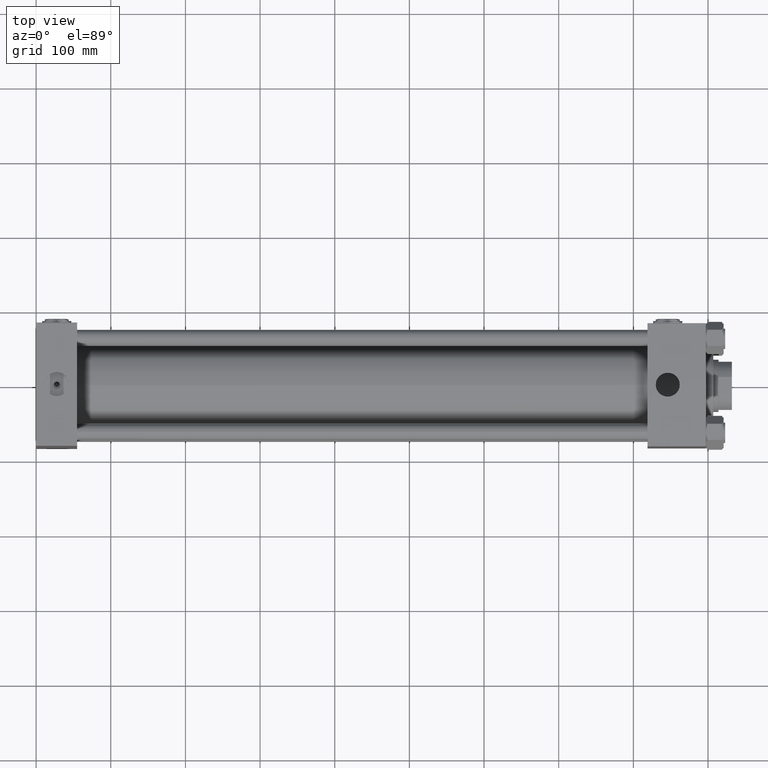
[diagram: clean part render]
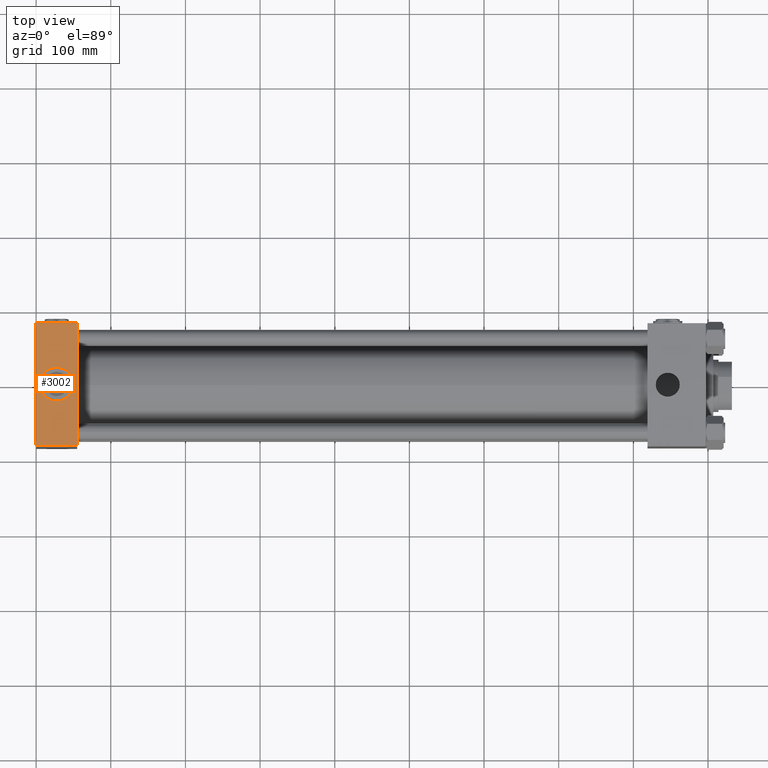
[diagram: same view with one face highlighted and labeled with its STEP entity id]
A machine part, top view. The second image highlights one B-rep face of the part: STEP entity #3002.
In plain terms, the highlighted planar face has unit normal (0, 0, -1).
Its self-contained STEP definition (entity closure, byte-faithful):
#227 = DIRECTION ( 'NONE',  ( 0.000000000000000000, 1.000000000000000000, 1.682156097916903834E-16 ) ) ;
#614 = AXIS2_PLACEMENT_3D ( 'NONE', #1709, #25153, #41109 ) ;
#746 = CARTESIAN_POINT ( 'NONE',  ( 55.00000000000000000, 82.50000000000001421, 123.5000000000000284 ) ) ;
#1051 = CARTESIAN_POINT ( 'NONE',  ( 0.000000000000000000, 81.99999999999998579, 123.5000000000000284 ) ) ;
#1446 = ORIENTED_EDGE ( 'NONE', *, *, #36270, .T. ) ;
#1709 = CARTESIAN_POINT ( 'NONE',  ( 27.50000000000000000, -2.250935128525057001E-14, 123.5000000000000142 ) ) ;
#3002 = ADVANCED_FACE ( 'NONE', ( #44417, #4234 ), #49197, .F. ) ;
#4234 = FACE_OUTER_BOUND ( 'NONE', #20401, .T. ) ;
#4670 = CARTESIAN_POINT ( 'NONE',  ( 0.000000000000000000, 82.50000000000001421, 123.5000000000000284 ) ) ;
#5067 = LINE ( 'NONE', #40474, #35126 ) ;
#5742 = CIRCLE ( 'NONE', #614, 22.50000000000000355 ) ;
#6344 = DIRECTION ( 'NONE',  ( 0.000000000000000000, 0.000000000000000000, 1.000000000000000000 ) ) ;
#10649 = VERTEX_POINT ( 'NONE', #30133 ) ;
#11555 = CARTESIAN_POINT ( 'NONE',  ( 50.00000000000000000, -2.250935128525057001E-14, 123.5000000000000142 ) ) ;
#11780 = EDGE_CURVE ( 'NONE', #18757, #44041, #37509, .T. ) ;
#13472 = CARTESIAN_POINT ( 'NONE',  ( 55.00000000000000000, -81.99999999999998579, 123.5000000000000000 ) ) ;
#13564 = CARTESIAN_POINT ( 'NONE',  ( 4.999999999999993783, -1.975389598716902602E-14, 123.5000000000000142 ) ) ;
#15599 = EDGE_CURVE ( 'NONE', #28889, #29923, #30086, .T. ) ;
#16811 = VECTOR ( 'NONE', #37380, 1000.000000000000000 ) ;
#18757 = VERTEX_POINT ( 'NONE', #40993 ) ;
#20118 = CARTESIAN_POINT ( 'NONE',  ( 55.00000000000000000, 82.50000000000001421, 123.5000000000000284 ) ) ;
#20379 = LINE ( 'NONE', #20118, #34676 ) ;
#20401 = EDGE_LOOP ( 'NONE', ( #40759, #1446, #26036, #23921 ) ) ;
#21581 = VECTOR ( 'NONE', #29011, 1000.000000000000000 ) ;
#22567 = CARTESIAN_POINT ( 'NONE',  ( 27.50000000000000000, -2.250935128525057001E-14, 123.5000000000000142 ) ) ;
#23921 = ORIENTED_EDGE ( 'NONE', *, *, #11780, .T. ) ;
#23970 = EDGE_CURVE ( 'NONE', #29923, #28889, #5742, .T. ) ;
#24856 = EDGE_CURVE ( 'NONE', #18757, #39051, #20379, .T. ) ;
#25153 = DIRECTION ( 'NONE',  ( 0.000000000000000000, 0.000000000000000000, 1.000000000000000000 ) ) ;
#26036 = ORIENTED_EDGE ( 'NONE', *, *, #24856, .F. ) ;
#28628 = DIRECTION ( 'NONE',  ( 0.000000000000000000, -1.000000000000000000, -1.682156097916903834E-16 ) ) ;
#28889 = VERTEX_POINT ( 'NONE', #13564 ) ;
#28910 = EDGE_LOOP ( 'NONE', ( #45182, #50842 ) ) ;
#29011 = DIRECTION ( 'NONE',  ( -1.000000000000000000, 0.000000000000000000, 0.000000000000000000 ) ) ;
#29923 = VERTEX_POINT ( 'NONE', #11555 ) ;
#30086 = CIRCLE ( 'NONE', #34343, 22.50000000000000355 ) ;
#30133 = CARTESIAN_POINT ( 'NONE',  ( 0.000000000000000000, -81.99999999999998579, 123.5000000000000000 ) ) ;
#33936 = LINE ( 'NONE', #4670, #16811 ) ;
#34343 = AXIS2_PLACEMENT_3D ( 'NONE', #22567, #6344, #38792 ) ;
#34676 = VECTOR ( 'NONE', #28628, 1000.000000000000000 ) ;
#35126 = VECTOR ( 'NONE', #45498, 1000.000000000000000 ) ;
#36270 = EDGE_CURVE ( 'NONE', #10649, #39051, #5067, .T. ) ;
#37380 = DIRECTION ( 'NONE',  ( 0.000000000000000000, -1.000000000000000000, -1.682156097916903834E-16 ) ) ;
#37509 = LINE ( 'NONE', #1051, #21581 ) ;
#38792 = DIRECTION ( 'NONE',  ( 1.000000000000000000, 0.000000000000000000, 0.000000000000000000 ) ) ;
#39051 = VERTEX_POINT ( 'NONE', #13472 ) ;
#39966 = CARTESIAN_POINT ( 'NONE',  ( 0.000000000000000000, 81.99999999999998579, 123.5000000000000284 ) ) ;
#40474 = CARTESIAN_POINT ( 'NONE',  ( 55.00000000000000000, -81.99999999999998579, 123.5000000000000000 ) ) ;
#40759 = ORIENTED_EDGE ( 'NONE', *, *, #50639, .T. ) ;
#40993 = CARTESIAN_POINT ( 'NONE',  ( 55.00000000000000000, 81.99999999999998579, 123.5000000000000284 ) ) ;
#41109 = DIRECTION ( 'NONE',  ( 1.000000000000000000, 0.000000000000000000, 0.000000000000000000 ) ) ;
#43338 = AXIS2_PLACEMENT_3D ( 'NONE', #746, #48938, #227 ) ;
#44041 = VERTEX_POINT ( 'NONE', #39966 ) ;
#44417 = FACE_BOUND ( 'NONE', #28910, .T. ) ;
#45182 = ORIENTED_EDGE ( 'NONE', *, *, #23970, .F. ) ;
#45498 = DIRECTION ( 'NONE',  ( 1.000000000000000000, 0.000000000000000000, 0.000000000000000000 ) ) ;
#48938 = DIRECTION ( 'NONE',  ( 0.000000000000000000, 1.682156097916903834E-16, -1.000000000000000000 ) ) ;
#49197 = PLANE ( 'NONE',  #43338 ) ;
#50639 = EDGE_CURVE ( 'NONE', #44041, #10649, #33936, .T. ) ;
#50842 = ORIENTED_EDGE ( 'NONE', *, *, #15599, .F. ) ;